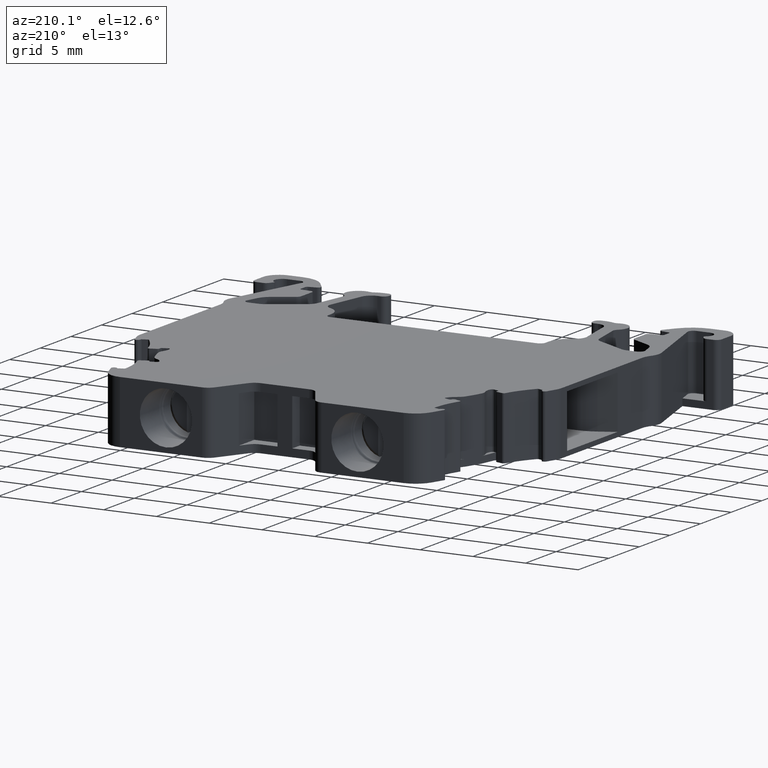
[diagram: clean part render]
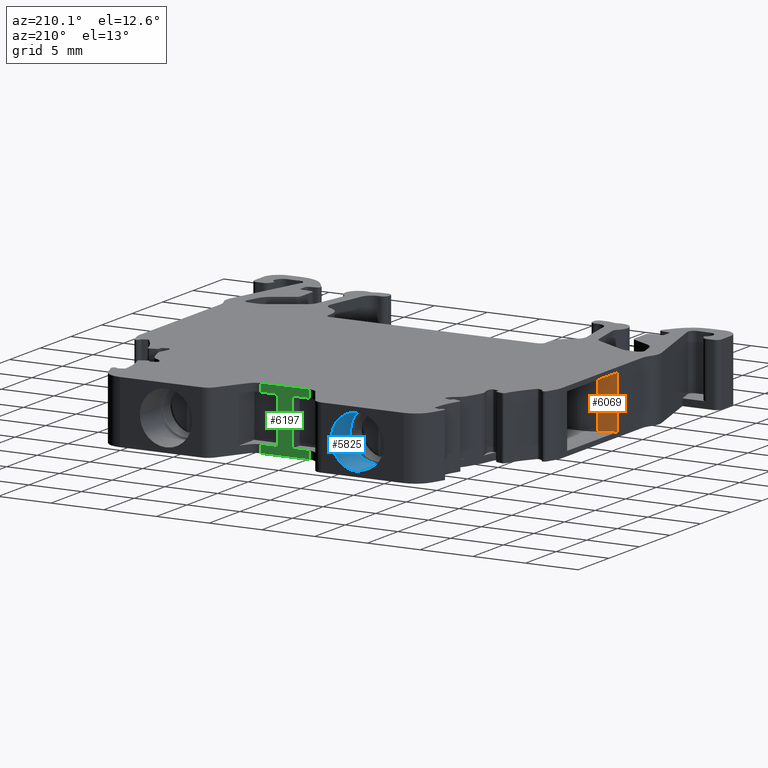
[diagram: same view with three faces highlighted in distinct colors, each labeled with its STEP entity id]
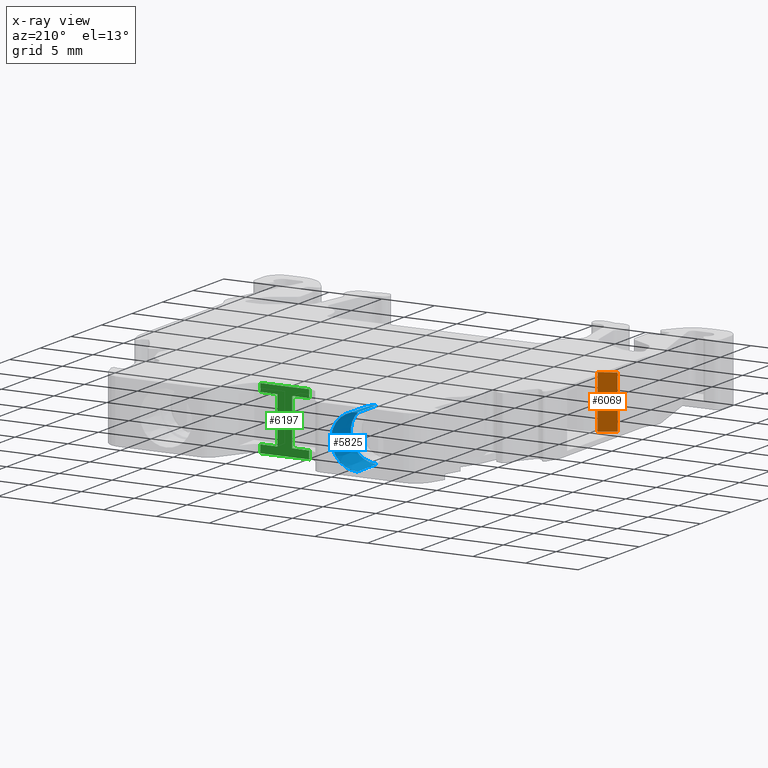
[diagram: x-ray of the same camera — body ghosted, the three highlighted faces saturated]
A machine part, auxiliary view with three faces highlighted in distinct colors.
The next image is the same camera in x-ray (body ghosted, the three faces saturated) — at least one of them is partly hidden behind the body in this view.
Their STEP definitions:

[orange] entity #6069 — the highlighted planar face has unit normal (0.4226, -0.9063, 0).
#1399 = AXIS2_PLACEMENT_3D ( 'NONE', #9752, #9753, #9722 ) ;
#1637 = VECTOR ( 'NONE', #2687, 1000.000000000000000 ) ;
#2659 = LINE ( 'NONE', #2686, #1637 ) ;
#2686 = CARTESIAN_POINT ( 'NONE',  ( 1441.660034998820900, 934.4798175989724300, 499996.6999999999500 ) ) ;
#2687 = DIRECTION ( 'NONE',  ( -0.0000000000000000000, 0.0000000000000000000, 1.000000000000000000 ) ) ;
#2927 = CARTESIAN_POINT ( 'NONE',  ( 1441.660034998820900, 934.4798175989724300, -2.500000000006994800 ) ) ;
#2928 = DIRECTION ( 'NONE',  ( -0.9063078217526474600, -0.4226181872919945700, 0.0000000000000000000 ) ) ;
#2929 = CARTESIAN_POINT ( 'NONE',  ( 1440.178072242155400, 933.7887671703877000, 2.500000000006994800 ) ) ;
#2936 = LINE ( 'NONE', #2929, #10494 ) ;
#2945 = DIRECTION ( 'NONE',  ( 0.9063078230977225100, 0.4226181844074714000, 0.0000000000000000000 ) ) ;
#2974 = LINE ( 'NONE', #2927, #10493 ) ;
#3005 = LINE ( 'NONE', #3020, #10461 ) ;
#3020 = CARTESIAN_POINT ( 'NONE',  ( 1440.178072069531000, 933.7887671703877000, 2.899999999999999900 ) ) ;
#3038 = DIRECTION ( 'NONE',  ( -0.0000000000000000000, -0.0000000000000000000, -1.000000000000000000 ) ) ;
#6069 = ADVANCED_FACE ( 'NONE', ( #9755 ), #9717, .F. ) ;
#6590 = EDGE_CURVE ( 'NONE', #10857, #10880, #2659, .T. ) ;
#6663 = EDGE_CURVE ( 'NONE', #10857, #11636, #2974, .T. ) ;
#6664 = EDGE_CURVE ( 'NONE', #11683, #10880, #2936, .T. ) ;
#6679 = EDGE_CURVE ( 'NONE', #11683, #11636, #3005, .T. ) ;
#8018 = CARTESIAN_POINT ( 'NONE',  ( 1441.660034998820500, 934.4798175989720900, -2.499999999971621800 ) ) ;
#8040 = CARTESIAN_POINT ( 'NONE',  ( 1440.178072077740600, 933.7887671384543200, -2.500000000033872000 ) ) ;
#8049 = CARTESIAN_POINT ( 'NONE',  ( 1441.660035004658500, 934.4798176016947800, 2.499999999914778400 ) ) ;
#8132 = CARTESIAN_POINT ( 'NONE',  ( 1440.178072745770400, 933.7887674052271900, 2.500000000006994800 ) ) ;
#9034 = ORIENTED_EDGE ( 'NONE', *, *, #6664, .T. ) ;
#9037 = ORIENTED_EDGE ( 'NONE', *, *, #6663, .T. ) ;
#9051 = ORIENTED_EDGE ( 'NONE', *, *, #6590, .F. ) ;
#9055 = ORIENTED_EDGE ( 'NONE', *, *, #6679, .F. ) ;
#9717 = PLANE ( 'NONE',  #1399 ) ;
#9722 = DIRECTION ( 'NONE',  ( 0.9063078217526751000, 0.4226181872919355100, 0.0000000000000000000 ) ) ;
#9752 = CARTESIAN_POINT ( 'NONE',  ( 1441.660034998822100, 934.4798175989730000, 499996.6999999999500 ) ) ;
#9753 = DIRECTION ( 'NONE',  ( 0.4226181872919355100, -0.9063078217526751000, 0.0000000000000000000 ) ) ;
#9755 = FACE_OUTER_BOUND ( 'NONE', #11361, .T. ) ;
#10461 = VECTOR ( 'NONE', #3038, 1000.000000000000000 ) ;
#10493 = VECTOR ( 'NONE', #2928, 1000.000000000000100 ) ;
#10494 = VECTOR ( 'NONE', #2945, 1000.000000000000000 ) ;
#10857 = VERTEX_POINT ( 'NONE', #8018 ) ;
#10880 = VERTEX_POINT ( 'NONE', #8049 ) ;
#11361 = EDGE_LOOP ( 'NONE', ( #9055, #9034, #9051, #9037 ) ) ;
#11636 = VERTEX_POINT ( 'NONE', #8040 ) ;
#11683 = VERTEX_POINT ( 'NONE', #8132 ) ;

[blue] entity #5825 — the highlighted conical surface has half-angle 0.5 deg.
#491 = FACE_OUTER_BOUND ( 'NONE', #11394, .T. ) ;
#492 = CARTESIAN_POINT ( 'NONE',  ( 1451.103378640880000, 957.4726163252194100, 0.0000000000000000000 ) ) ;
#493 = DIRECTION ( 'NONE',  ( -0.0000000000000000000, 1.000000000000000000, 0.0000000000000000000 ) ) ;
#497 = DIRECTION ( 'NONE',  ( 0.0000000000000000000, 0.0000000000000000000, 1.000000000000000000 ) ) ;
#1648 = VECTOR ( 'NONE', #4219, 1000.000000000000000 ) ;
#1680 = VECTOR ( 'NONE', #4442, 1000.000000000000000 ) ;
#1974 = CONICAL_SURFACE ( 'NONE', #1982, 2.482488710350061500, 0.008726924975134303700 ) ;
#1982 = AXIS2_PLACEMENT_3D ( 'NONE', #492, #493, #497 ) ;
#2759 = CARTESIAN_POINT ( 'NONE',  ( 1451.103378640880000, 954.3505073606866100, 0.0000000000000000000 ) ) ;
#2775 = DIRECTION ( 'NONE',  ( 0.0000000000000000000, 0.0000000000000000000, 1.000000000000000000 ) ) ;
#2781 = DIRECTION ( 'NONE',  ( 0.0000000000000000000, 1.000000000000000000, 0.0000000000000000000 ) ) ;
#2990 = CARTESIAN_POINT ( 'NONE',  ( 1451.103378640880000, 957.4726163252194100, 0.0000000000000000000 ) ) ;
#3001 = DIRECTION ( 'NONE',  ( 0.0000000000000000000, -1.000000000000000000, -0.0000000000000000000 ) ) ;
#3025 = DIRECTION ( 'NONE',  ( 0.0000000000000000000, 0.0000000000000000000, 1.000000000000000000 ) ) ;
#4196 = LINE ( 'NONE', #4204, #1648 ) ;
#4204 = CARTESIAN_POINT ( 'NONE',  ( 1451.103378640880000, 957.4726163252194100, -2.482488710350061500 ) ) ;
#4219 = DIRECTION ( 'NONE',  ( 1.068726508036408700E-018, 0.9999619206319146900, -0.008726814202923632200 ) ) ;
#4442 = DIRECTION ( 'NONE',  ( 0.0000000000000000000, 0.9999619206319146900, 0.008726814202923632200 ) ) ;
#4448 = LINE ( 'NONE', #4513, #1680 ) ;
#4513 = CARTESIAN_POINT ( 'NONE',  ( 1451.103378640880000, 957.4726163252194100, 2.482488710350061500 ) ) ;
#5825 = ADVANCED_FACE ( 'NONE', ( #491 ), #1974, .F. ) ;
#6326 = EDGE_CURVE ( 'NONE', #10712, #10701, #4196, .T. ) ;
#6333 = EDGE_CURVE ( 'NONE', #10724, #10757, #4448, .T. ) ;
#6615 = EDGE_CURVE ( 'NONE', #10724, #10712, #10428, .T. ) ;
#6670 = EDGE_CURVE ( 'NONE', #10701, #10757, #10496, .T. ) ;
#7305 = CARTESIAN_POINT ( 'NONE',  ( 1451.103378640880000, 957.4726163252194100, -2.482488710350061500 ) ) ;
#7315 = CARTESIAN_POINT ( 'NONE',  ( 1451.103378640880000, 954.3505073606866100, 2.455241607942877400 ) ) ;
#7355 = CARTESIAN_POINT ( 'NONE',  ( 1451.103378640880000, 954.3505073606866100, -2.455241607942877400 ) ) ;
#8562 = CARTESIAN_POINT ( 'NONE',  ( 1451.103378640880000, 957.4726163252194100, 2.482488710350061500 ) ) ;
#8995 = ORIENTED_EDGE ( 'NONE', *, *, #6615, .F. ) ;
#9004 = ORIENTED_EDGE ( 'NONE', *, *, #6333, .T. ) ;
#9024 = ORIENTED_EDGE ( 'NONE', *, *, #6326, .F. ) ;
#9028 = ORIENTED_EDGE ( 'NONE', *, *, #6670, .F. ) ;
#10416 = AXIS2_PLACEMENT_3D ( 'NONE', #2759, #2781, #2775 ) ;
#10428 = CIRCLE ( 'NONE', #10416, 2.455241607942859600 ) ;
#10462 = AXIS2_PLACEMENT_3D ( 'NONE', #2990, #3001, #3025 ) ;
#10496 = CIRCLE ( 'NONE', #10462, 2.482488710350061500 ) ;
#10701 = VERTEX_POINT ( 'NONE', #7305 ) ;
#10712 = VERTEX_POINT ( 'NONE', #7355 ) ;
#10724 = VERTEX_POINT ( 'NONE', #7315 ) ;
#10757 = VERTEX_POINT ( 'NONE', #8562 ) ;
#11394 = EDGE_LOOP ( 'NONE', ( #9024, #8995, #9004, #9028 ) ) ;

[green] entity #6197 — the highlighted planar face has unit normal (0, 1, 0).
#1444 = VECTOR ( 'NONE', #10197, 1000.000000000000000 ) ;
#1482 = VECTOR ( 'NONE', #10033, 1000.000000000000000 ) ;
#1512 = AXIS2_PLACEMENT_3D ( 'NONE', #9202, #9210, #9180 ) ;
#1579 = VECTOR ( 'NONE', #9517, 1000.000000000000000 ) ;
#2750 = LINE ( 'NONE', #2827, #10422 ) ;
#2796 = DIRECTION ( 'NONE',  ( 0.0000000000000000000, -0.0000000000000000000, 1.000000000000000000 ) ) ;
#2827 = CARTESIAN_POINT ( 'NONE',  ( 1459.478071211360200, 953.6846795375220200, 2.899999999999999900 ) ) ;
#3039 = DIRECTION ( 'NONE',  ( 1.000000000000000000, -0.0000000000000000000, 0.0000000000000000000 ) ) ;
#3041 = LINE ( 'NONE', #3043, #10467 ) ;
#3043 = CARTESIAN_POINT ( 'NONE',  ( -226.4086825919174800, 953.6846795375220200, -2.200000000000000200 ) ) ;
#3046 = LINE ( 'NONE', #3051, #10470 ) ;
#3051 = CARTESIAN_POINT ( 'NONE',  ( -226.4086825919174800, 953.6846795375220200, 2.200000000000000200 ) ) ;
#3055 = DIRECTION ( 'NONE',  ( -1.000000000000000000, -0.0000000000000000000, 0.0000000000000000000 ) ) ;
#3072 = CARTESIAN_POINT ( 'NONE',  ( 1460.878077507266000, 953.6846795375220200, 2.899999999999999900 ) ) ;
#3104 = LINE ( 'NONE', #3072, #10547 ) ;
#3124 = CARTESIAN_POINT ( 'NONE',  ( 3146.764831310545100, 953.6846795375220200, -2.200000000000000200 ) ) ;
#3125 = DIRECTION ( 'NONE',  ( 1.000000000000000000, -0.0000000000000000000, 0.0000000000000000000 ) ) ;
#3135 = DIRECTION ( 'NONE',  ( -0.0000000000000000000, 0.0000000000000000000, -1.000000000000000000 ) ) ;
#3143 = CARTESIAN_POINT ( 'NONE',  ( 3146.764831310545100, 953.6846795375220200, 2.200000000000000200 ) ) ;
#3144 = DIRECTION ( 'NONE',  ( -1.000000000000000000, -0.0000000000000000000, 0.0000000000000000000 ) ) ;
#3151 = LINE ( 'NONE', #3124, #10557 ) ;
#3153 = LINE ( 'NONE', #3143, #10545 ) ;
#4604 = ORIENTED_EDGE ( 'NONE', *, *, #6133, .T. ) ;
#4609 = ORIENTED_EDGE ( 'NONE', *, *, #6710, .T. ) ;
#4626 = ORIENTED_EDGE ( 'NONE', *, *, #6692, .T. ) ;
#4630 = ORIENTED_EDGE ( 'NONE', *, *, #6629, .T. ) ;
#4633 = ORIENTED_EDGE ( 'NONE', *, *, #6688, .T. ) ;
#4654 = ORIENTED_EDGE ( 'NONE', *, *, #6891, .T. ) ;
#4684 = ORIENTED_EDGE ( 'NONE', *, *, #6707, .T. ) ;
#4688 = ORIENTED_EDGE ( 'NONE', *, *, #6264, .F. ) ;
#4702 = ORIENTED_EDGE ( 'NONE', *, *, #6706, .T. ) ;
#4708 = ORIENTED_EDGE ( 'NONE', *, *, #6760, .T. ) ;
#4756 = ORIENTED_EDGE ( 'NONE', *, *, #6749, .T. ) ;
#4771 = ORIENTED_EDGE ( 'NONE', *, *, #6173, .T. ) ;
#6133 = EDGE_CURVE ( 'NONE', #11952, #10912, #10023, .T. ) ;
#6173 = EDGE_CURVE ( 'NONE', #10908, #11940, #10167, .T. ) ;
#6197 = ADVANCED_FACE ( 'NONE', ( #9207 ), #9220, .T. ) ;
#6264 = EDGE_CURVE ( 'NONE', #11952, #11940, #9425, .T. ) ;
#6629 = EDGE_CURVE ( 'NONE', #10841, #10843, #2750, .T. ) ;
#6688 = EDGE_CURVE ( 'NONE', #10912, #10841, #3041, .T. ) ;
#6692 = EDGE_CURVE ( 'NONE', #10843, #11621, #3046, .T. ) ;
#6706 = EDGE_CURVE ( 'NONE', #10899, #10884, #3104, .T. ) ;
#6707 = EDGE_CURVE ( 'NONE', #10935, #10899, #3153, .T. ) ;
#6710 = EDGE_CURVE ( 'NONE', #10884, #10908, #3151, .T. ) ;
#6749 = EDGE_CURVE ( 'NONE', #11621, #11605, #7379, .T. ) ;
#6760 = EDGE_CURVE ( 'NONE', #11586, #10935, #7430, .T. ) ;
#6891 = EDGE_CURVE ( 'NONE', #11605, #11586, #7829, .T. ) ;
#7364 = CARTESIAN_POINT ( 'NONE',  ( 1457.871626077920200, 953.6846795375220200, 2.899999999999999900 ) ) ;
#7367 = DIRECTION ( 'NONE',  ( 0.0000000000000000000, -0.0000000000000000000, 1.000000000000000000 ) ) ;
#7379 = LINE ( 'NONE', #7364, #10535 ) ;
#7430 = LINE ( 'NONE', #7440, #10527 ) ;
#7440 = CARTESIAN_POINT ( 'NONE',  ( 1462.484522640706000, 953.6846795375220200, 2.899999999999999900 ) ) ;
#7441 = DIRECTION ( 'NONE',  ( -0.0000000000000000000, 0.0000000000000000000, -1.000000000000000000 ) ) ;
#7829 = LINE ( 'NONE', #7838, #10222 ) ;
#7838 = CARTESIAN_POINT ( 'NONE',  ( 1471.260352861904300, 953.6846795375220200, 2.949999999999999300 ) ) ;
#7892 = DIRECTION ( 'NONE',  ( 1.000000000000000000, 0.0000000000000000000, -0.0000000000000000000 ) ) ;
#8004 = CARTESIAN_POINT ( 'NONE',  ( 1459.478071211360200, 953.6846795375220200, -2.200000000000000200 ) ) ;
#8008 = CARTESIAN_POINT ( 'NONE',  ( 1459.478071211360200, 953.6846795375219000, 2.200000000000000600 ) ) ;
#8051 = CARTESIAN_POINT ( 'NONE',  ( 1460.878077507266000, 953.6846795375220200, 2.200000000000000200 ) ) ;
#8053 = CARTESIAN_POINT ( 'NONE',  ( 1457.871626077920200, 953.6846795375220200, 2.200000000000000600 ) ) ;
#8055 = CARTESIAN_POINT ( 'NONE',  ( 1462.484522640706000, 953.6846795375220200, 2.949999999999999300 ) ) ;
#8068 = CARTESIAN_POINT ( 'NONE',  ( 1460.878077507266000, 953.6846795375220200, -2.200000000000000600 ) ) ;
#8069 = CARTESIAN_POINT ( 'NONE',  ( 1462.484522640706000, 953.6846795375220200, -2.200000000000000600 ) ) ;
#8076 = CARTESIAN_POINT ( 'NONE',  ( 1457.871626077920200, 953.6846795375220200, 2.949999999999999300 ) ) ;
#8081 = CARTESIAN_POINT ( 'NONE',  ( 1462.484522640706000, 953.6846795375220200, 2.200000000000000600 ) ) ;
#8087 = CARTESIAN_POINT ( 'NONE',  ( 1457.871626077920200, 953.6846795375220200, -2.200000000000000600 ) ) ;
#8351 = CARTESIAN_POINT ( 'NONE',  ( 1457.871626077919900, 953.6846795375220200, -2.949999999999999300 ) ) ;
#8404 = CARTESIAN_POINT ( 'NONE',  ( 1462.484522640706000, 953.6846795375219000, -2.949999999999999300 ) ) ;
#9180 = DIRECTION ( 'NONE',  ( 0.0000000000000000000, -0.0000000000000000000, 1.000000000000000000 ) ) ;
#9202 = CARTESIAN_POINT ( 'NONE',  ( 1471.260352861904300, 953.6846795375220200, 2.899999999999999900 ) ) ;
#9207 = FACE_OUTER_BOUND ( 'NONE', #11482, .T. ) ;
#9210 = DIRECTION ( 'NONE',  ( 0.0000000000000000000, 1.000000000000000000, 0.0000000000000000000 ) ) ;
#9220 = PLANE ( 'NONE',  #1512 ) ;
#9425 = LINE ( 'NONE', #9426, #1579 ) ;
#9426 = CARTESIAN_POINT ( 'NONE',  ( 1443.419965517744000, 953.6846795375219000, -2.949999999999999700 ) ) ;
#9517 = DIRECTION ( 'NONE',  ( 1.000000000000000000, -0.0000000000000000000, 0.0000000000000000000 ) ) ;
#10023 = LINE ( 'NONE', #10027, #1482 ) ;
#10027 = CARTESIAN_POINT ( 'NONE',  ( 1457.871626077919900, 953.6846795375220200, 2.899999999999999900 ) ) ;
#10033 = DIRECTION ( 'NONE',  ( 0.0000000000000000000, -0.0000000000000000000, 1.000000000000000000 ) ) ;
#10167 = LINE ( 'NONE', #10181, #1444 ) ;
#10181 = CARTESIAN_POINT ( 'NONE',  ( 1462.484522640706000, 953.6846795375219000, 2.899999999999999900 ) ) ;
#10197 = DIRECTION ( 'NONE',  ( 0.0000000000000000000, 0.0000000000000000000, -1.000000000000000000 ) ) ;
#10222 = VECTOR ( 'NONE', #7892, 1000.000000000000000 ) ;
#10422 = VECTOR ( 'NONE', #2796, 1000.000000000000000 ) ;
#10467 = VECTOR ( 'NONE', #3039, 1000.000000000000000 ) ;
#10470 = VECTOR ( 'NONE', #3055, 1000.000000000000000 ) ;
#10527 = VECTOR ( 'NONE', #7441, 1000.000000000000000 ) ;
#10535 = VECTOR ( 'NONE', #7367, 1000.000000000000000 ) ;
#10545 = VECTOR ( 'NONE', #3144, 1000.000000000000000 ) ;
#10547 = VECTOR ( 'NONE', #3135, 1000.000000000000000 ) ;
#10557 = VECTOR ( 'NONE', #3125, 1000.000000000000000 ) ;
#10841 = VERTEX_POINT ( 'NONE', #8004 ) ;
#10843 = VERTEX_POINT ( 'NONE', #8008 ) ;
#10884 = VERTEX_POINT ( 'NONE', #8068 ) ;
#10899 = VERTEX_POINT ( 'NONE', #8051 ) ;
#10908 = VERTEX_POINT ( 'NONE', #8069 ) ;
#10912 = VERTEX_POINT ( 'NONE', #8087 ) ;
#10935 = VERTEX_POINT ( 'NONE', #8081 ) ;
#11482 = EDGE_LOOP ( 'NONE', ( #4708, #4684, #4702, #4609, #4771, #4688, #4604, #4633, #4630, #4626, #4756, #4654 ) ) ;
#11586 = VERTEX_POINT ( 'NONE', #8055 ) ;
#11605 = VERTEX_POINT ( 'NONE', #8076 ) ;
#11621 = VERTEX_POINT ( 'NONE', #8053 ) ;
#11940 = VERTEX_POINT ( 'NONE', #8404 ) ;
#11952 = VERTEX_POINT ( 'NONE', #8351 ) ;